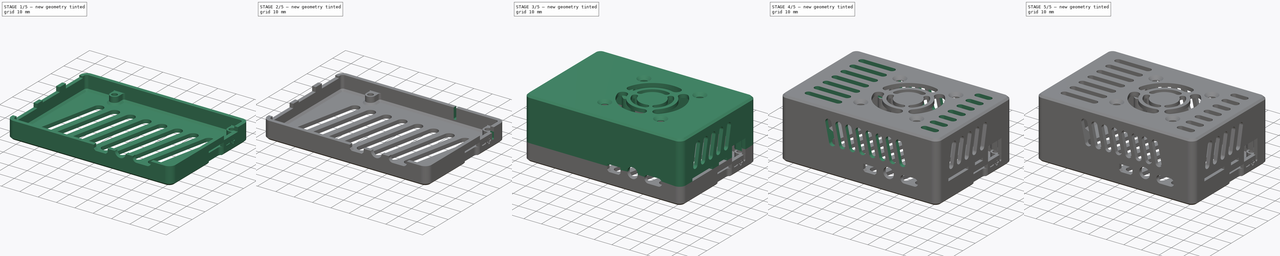
[diagram: build sequence overview — one tinted view per stage of 5, left to right]
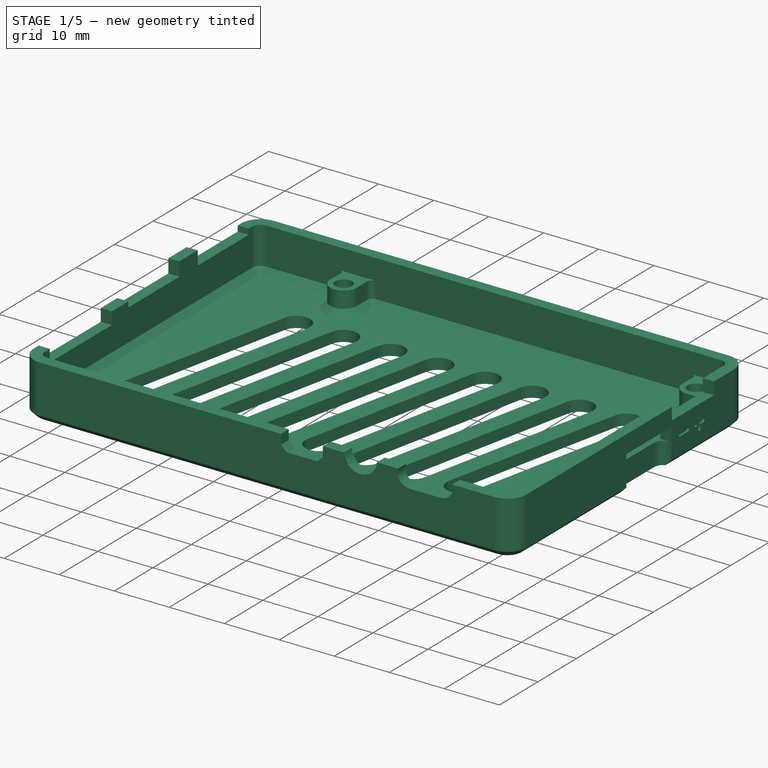
[diagram: stage 1 of 5 — iso view after this stage's code; geometry added in this stage tinted green]
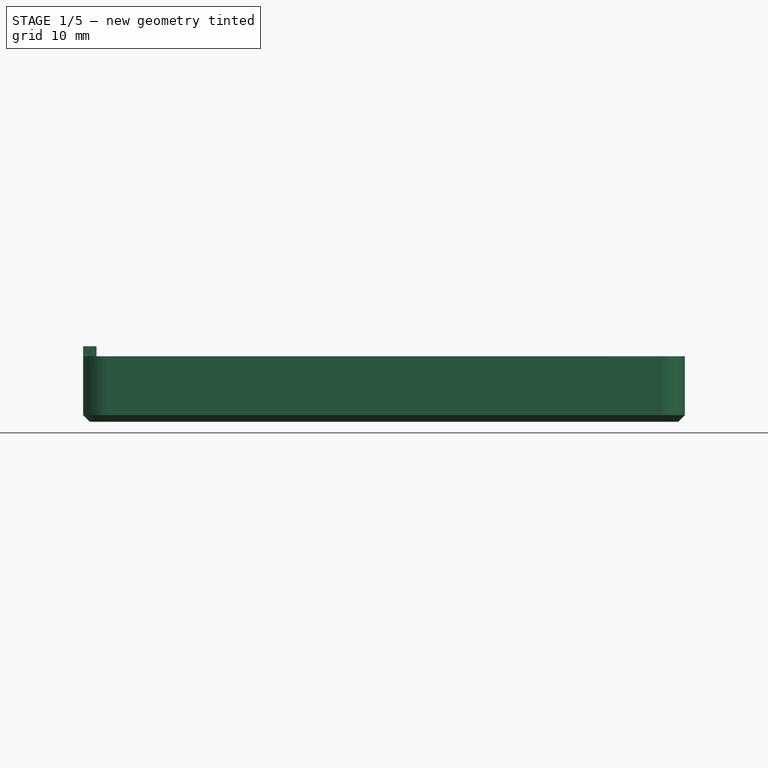
[diagram: stage 1 of 5 — front view after this stage's code; geometry added in this stage tinted green]
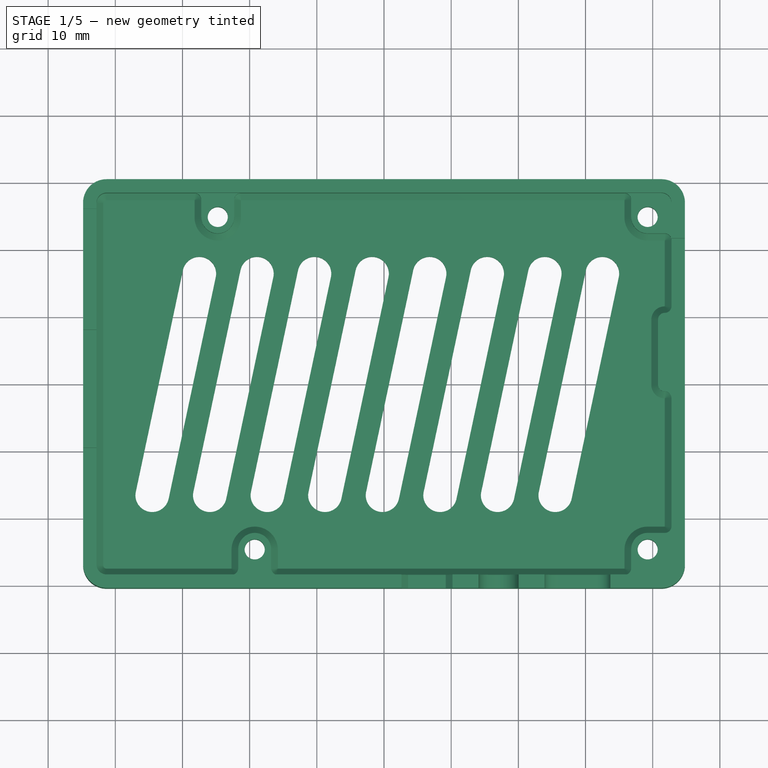
[diagram: stage 1 of 5 — top view after this stage's code; geometry added in this stage tinted green]
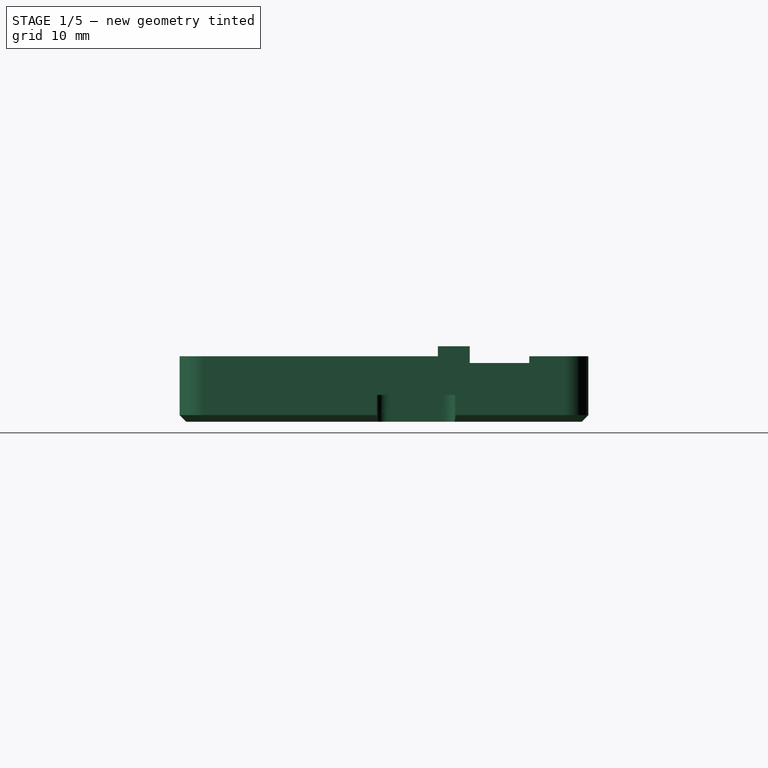
[diagram: stage 1 of 5 — right view after this stage's code; geometry added in this stage tinted green]
FCSTD DOCUMENT  (FreeCAD 0.21R33771 (Git))
Label: Base
License: All rights reserved
LicenseURL: http://en.wikipedia.org/wiki/All_rights_reserved
objects: Sketcher::SketchObject×18, PartDesign::Pocket×13, PartDesign::Pad×7, PartDesign::LinearPattern×4, Part::Feature×3, PartDesign::FeatureBase×2, PartDesign::Body×2, PartDesign::Chamfer×1
note: 71 computed .brp shape members not serialized (recipe doc carries the construction recipe); baked Part::Feature solids carry a one-line shape summary decoded from their .brp

FEATURE [PartDesign::Body] Body  label="Caste_top_snapfit"
  BaseFeature = -> Defeatured
  Group = -> [BaseFeature,Sketch,Pocket,LinearPattern,Sketch001,Pocket001,LinearPattern001,Sketch002,Pocket002,LinearPattern002,Sketch003,Pad,Sketch004,Pad001,Sketch005,Pad002,Sketch006,Pad003,Sketch007,Sketch008,Pad004,Pad005,Pocket003]
  Origin = -> Origin
  Tip = -> Pocket003
FEATURE [PartDesign::FeatureBase] BaseFeature001
  BaseFeature = -> Part__Feature
FEATURE [Sketcher::SketchObject] Sketch009
  FullyConstrained = true
  MapMode = 5
  Support = -> [XY_Plane001]
  sketch-geometry (5):
    g0: ArcOfCircle CenterX=-27.4928 CenterY=16.5 CenterZ=0 NormalX=0 NormalY=0 NormalZ=1 AngleXU=0 Radius=2.5 StartAngle=6.07375 EndAngle=9.21534
    g1: ArcOfCircle CenterX=-34.5072 CenterY=-16.5 CenterZ=0 NormalX=0 NormalY=0 NormalZ=1 AngleXU=0 Radius=2.5 StartAngle=2.93215 EndAngle=6.07375
    g2: LineSegment StartX=-29.9382 StartY=17.0198 StartZ=0 EndX=-36.9526 EndY=-15.9802 EndZ=0
    g3: LineSegment StartX=-32.0618 StartY=-17.0198 StartZ=0 EndX=-25.0474 EndY=15.9802 EndZ=0
    g4: GeomPoint X=-31 Y=0 Z=0
  constraints (11):
    c: Tangent(g0,g2) = -1.5708
    c: Tangent(g2,g1) = -1.5708
    c: Tangent(g1,g3) = -1.5708
    c: Tangent(g3,g0) = -1.5708
    c: Equal(g0,g1)
    c: PointOnObject(g4,g-1)
    c: Symmetric(g0,g1,g4)
    c: Diameter(g0) = 5
    c: Angle(g-1,g3) = 1.36136
    c: DistanceY(g3,g3) = 33
    c: DistanceX(g4,g-1) = 31
FEATURE [PartDesign::Pocket] Pocket004  label="Grate_btm"
  BaseFeature = -> BaseFeature001
  Direction = (0,0,-1)
  Length = 5
  Length2 = 5
  Midplane = true
  Profile = -> Sketch009
  ReferenceAxis = -> Sketch009 [N_Axis]
  Type = 1
FEATURE [PartDesign::LinearPattern] LinearPattern003
  BaseFeature = -> Pocket004
  Direction = -> X_Axis001
  Length = 60
  Occurrences = 8
  Originals = -> [Pocket004]
FEATURE [PartDesign::Pad] Pad006
  BaseFeature = -> LinearPattern003
  Direction = (0,0,1)
  Length = 1.5
  Length2 = 10
  Profile = -> LinearPattern003 [Face115]
  Type = 0
FEATURE [Sketcher::SketchObject] Sketch010
  AttachmentOffset = pos=(0,0,-24.875) rot=(0,0,1;0rad)
  FullyConstrained = true
  MapMode = 5
  Placement = pos=(0,24.875,5.5e-15) rot=(1,0,0;1.5708rad)
  Support = -> [XZ_Plane001]
  sketch-geometry (4):
    g0: LineSegment StartX=42.8 StartY=-9.55975 StartZ=0 EndX=42.8 EndY=-11 EndZ=0
    g1: LineSegment StartX=42.8 StartY=-11 StartZ=0 EndX=43.4 EndY=-10.5799 EndZ=0
    g2: LineSegment StartX=43.4 StartY=-10.5799 StartZ=0 EndX=43.4 EndY=-9.97988 EndZ=0
    g3: LineSegment StartX=43.4 StartY=-9.97988 StartZ=0 EndX=42.8 EndY=-9.55975 EndZ=0
  constraints (12):
    c: Coincident(g0,g1)
    c: Coincident(g1,g2)
    c: Vertical(g2)
    c: Coincident(g2,g3)
    c: Coincident(g3,g0)
    c: Parallel(g2,g0)
    c: Equal(g3,g1)
    c: DistanceY(g2,g2) = 0.6
    c: Angle(g0,g3) = 0.959931
    c: DistanceX(g0,g1) = 0.6
    c: DistanceX(g-1,g0) = 42.8
    c: DistanceY(g0,g-1) = 11
FEATURE [Sketcher::SketchObject] Sketch011
  AttachmentOffset = pos=(0,0,44.8) rot=(0,0,1;0rad)
  FullyConstrained = true
  MapMode = 5
  Placement = pos=(44.8,-9.9e-15,9.9e-15) rot=(0.57735,0.57735,0.57735;2.0944rad)
  Support = -> [YZ_Plane001]
  sketch-geometry (18):
    g0: GeomPoint X=17.88 Y=-12.5 Z=0
    g1: GeomPoint X=13.88 Y=-12.5 Z=0
    g2: ArcOfCircle CenterX=12.88 CenterY=-12.5 CenterZ=0 NormalX=0 NormalY=0 NormalZ=1 AngleXU=0 Radius=0.4 StartAngle=1.5708 EndAngle=4.71239
    g3: ArcOfCircle CenterX=14.88 CenterY=-12.5 CenterZ=0 NormalX=0 NormalY=0 NormalZ=1 AngleXU=0 Radius=0.4 StartAngle=4.71239 EndAngle=7.85398
    g4: LineSegment StartX=12.88 StartY=-12.9 StartZ=0 EndX=14.88 EndY=-12.9 EndZ=0
    g5: LineSegment StartX=14.88 StartY=-12.1 StartZ=0 EndX=12.88 EndY=-12.1 EndZ=0
    g6: ArcOfCircle CenterX=16.88 CenterY=-12.5 CenterZ=0 NormalX=0 NormalY=0 NormalZ=1 AngleXU=0 Radius=0.4 StartAngle=1.5708 EndAngle=4.71239
    g7: ArcOfCircle CenterX=18.88 CenterY=-12.5 CenterZ=0 NormalX=0 NormalY=0 NormalZ=1 AngleXU=0 Radius=0.4 StartAngle=4.71239 EndAngle=7.854
    g8: LineSegment StartX=16.88 StartY=-12.9 StartZ=0 EndX=17.48 EndY=-12.9 EndZ=0
    g9: LineSegment StartX=18.88 StartY=-12.1 StartZ=0 EndX=18.28 EndY=-12.1 EndZ=0
    g10: ArcOfCircle CenterX=17.88 CenterY=-11.5 CenterZ=0 NormalX=0 NormalY=0 NormalZ=1 AngleXU=0 Radius=0.4 StartAngle=0 EndAngle=3.14159
    g11: ArcOfCircle CenterX=17.88 CenterY=-13.5 CenterZ=0 NormalX=0 NormalY=0 NormalZ=1 AngleXU=0 Radius=0.4 StartAngle=3.14159 EndAngle=6.28319
    g12: LineSegment StartX=17.48 StartY=-11.5 StartZ=0 EndX=17.48 EndY=-12.1 EndZ=0
    g13: LineSegment StartX=18.28 StartY=-13.5 StartZ=0 EndX=18.28 EndY=-12.9 EndZ=0
    g14: LineSegment StartX=17.48 StartY=-12.1 StartZ=0 EndX=16.88 EndY=-12.1 EndZ=0
    g15: LineSegment StartX=18.28 StartY=-12.1 StartZ=0 EndX=18.28 EndY=-11.5 EndZ=0
    g16: LineSegment StartX=18.28 StartY=-12.9 StartZ=0 EndX=18.88 EndY=-12.9 EndZ=0
    g17: LineSegment StartX=17.48 StartY=-12.9 StartZ=0 EndX=17.48 EndY=-13.5 EndZ=0
  constraints (42):
    c: Horizontal(g1,g0)
    c: DistanceX(g1,g0) = 4
    c: Tangent(g2,g4) = -1.5708
    c: Tangent(g4,g3) = -1.5708
    c: Tangent(g3,g5) = -1.5708
    c: Tangent(g5,g2) = -1.5708
    c: Equal(g2,g3)
    c: Horizontal(g4)
    c: Symmetric(g2,g3,g1)
    c: Diameter(g3) = 0.8
    c: Equal(g6,g7)
    c: Symmetric(g6,g7,g0)
    c: Equal(g10,g7)
    c: Equal(g7,g3)
    c: Equal(g14,g12)
    c: Coincident(g9,g7)
    c: Coincident(g9,g15)
    c: Symmetric(g11,g10,g0)
    c: Symmetric(g9,g8,g0)
    c: Symmetric(g12,g13,g0)
    c: Coincident(g16,g13)
    c: Coincident(g12,g14)
    c: Coincident(g17,g8)
    c: Horizontal(g12,g9)
    c: Vertical(g8,g12)
    c: Vertical(g12)
    c: Parallel(g15,g12)
    c: Equal(g11,g7)
    c: Tangent(g15,g10) = -1.5708
    c: Tangent(g12,g10) = -1.5708
    c: Horizontal(g8)
    c: Tangent(g16,g7) = -1.5708
    c: Horizontal(g14)
    c: DistanceX(g6,g7) = 2
    c: DistanceX(g2,g3) = 2
    c: Tangent(g6,g14) = -1.5708
    c: Tangent(g13,g11) = -1.5708
    c: Tangent(g17,g11) = -1.5708
    c: DistanceY(g0,g-1) = 12.5
    c: Horizontal(g9)
    c: Tangent(g8,g6) = -1.5708
    c: DistanceX(g-1,g1) = 13.88
FEATURE [PartDesign::Pocket] Pocket005  label="Power_marking"
  BaseFeature = -> Pad006
  Direction = (-1,2e-16,-3e-16)
  Length = 0.4
  Length2 = 5
  Profile = -> Sketch011
  ReferenceAxis = -> Sketch011 [N_Axis]
  Type = 0
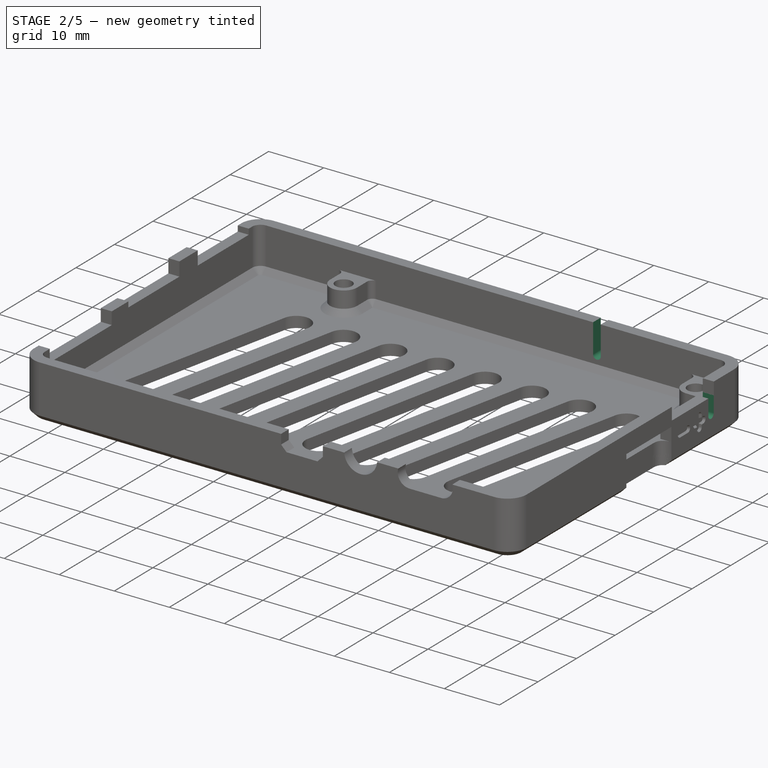
[diagram: stage 2 of 5 — iso view after this stage's code; geometry added in this stage tinted green]
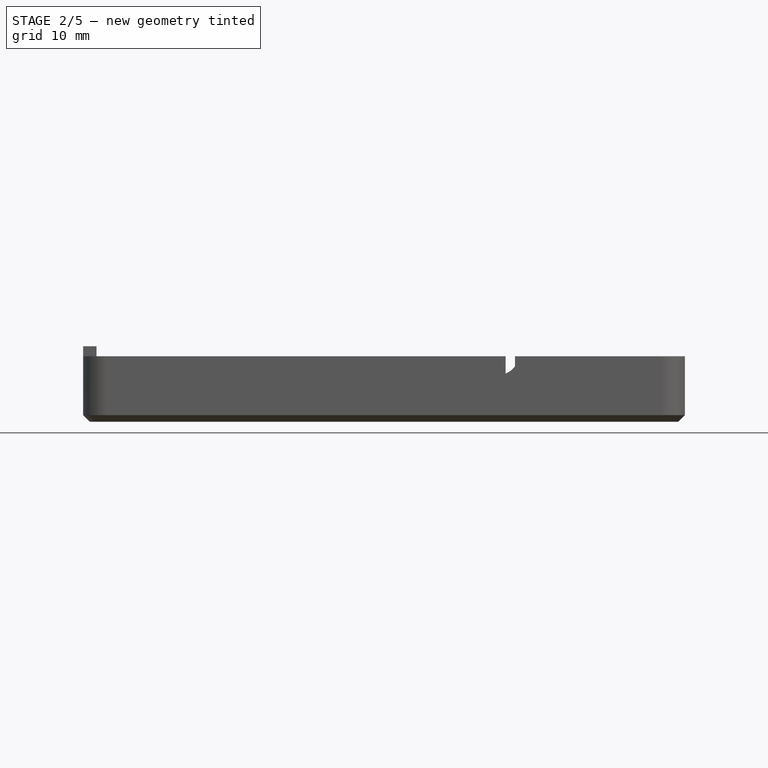
[diagram: stage 2 of 5 — front view after this stage's code; geometry added in this stage tinted green]
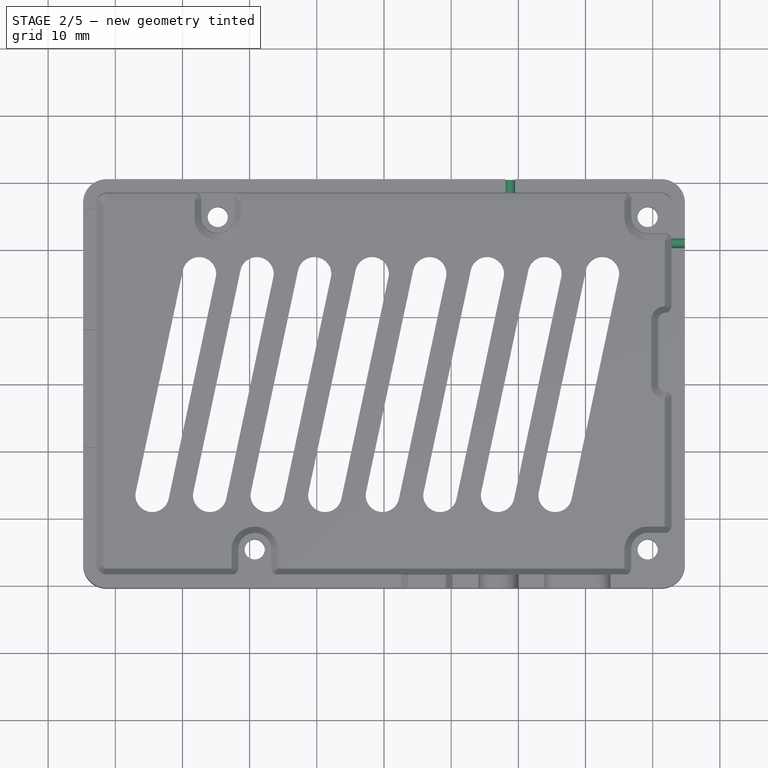
[diagram: stage 2 of 5 — top view after this stage's code; geometry added in this stage tinted green]
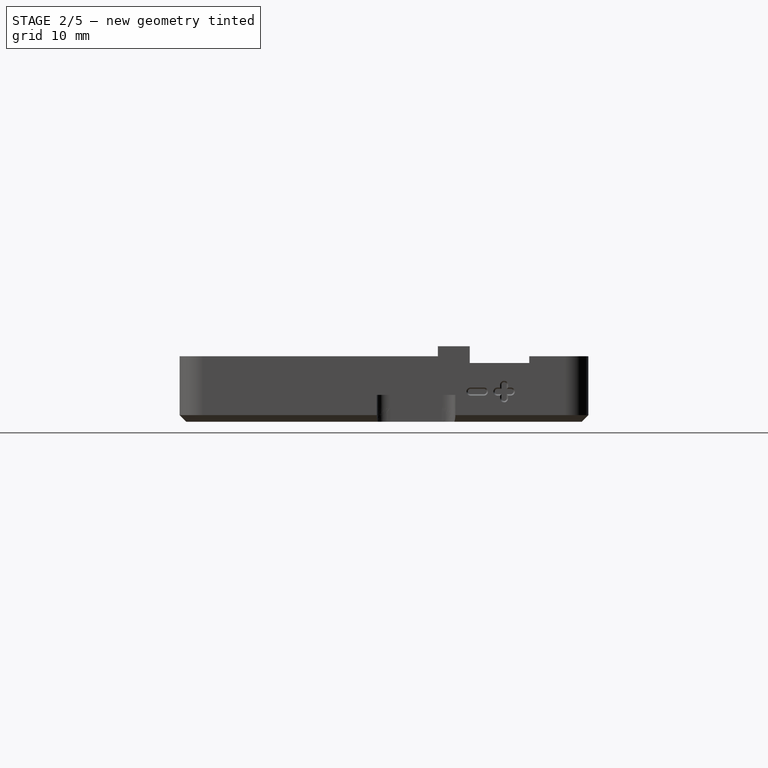
[diagram: stage 2 of 5 — right view after this stage's code; geometry added in this stage tinted green]
FEATURE [Sketcher::SketchObject] Sketch012
  AttachmentOffset = pos=(0,0,45) rot=(0,0,1;0rad)
  FullyConstrained = true
  MapMode = 5
  Placement = pos=(45,-1e-14,1e-14) rot=(0.57735,0.57735,0.57735;2.0944rad)
  Support = -> [YZ_Plane001]
  sketch-geometry (4):
    g0: ArcOfCircle CenterX=20.9 CenterY=-8.6 CenterZ=0 NormalX=0 NormalY=0 NormalZ=1 AngleXU=0 Radius=0.7 StartAngle=0 EndAngle=3.14159
    g1: ArcOfCircle CenterX=20.9 CenterY=-12.4 CenterZ=0 NormalX=0 NormalY=0 NormalZ=1 AngleXU=0 Radius=0.7 StartAngle=3.14159 EndAngle=6.28319
    g2: LineSegment StartX=20.2 StartY=-8.6 StartZ=0 EndX=20.2 EndY=-12.4 EndZ=0
    g3: LineSegment StartX=21.6 StartY=-12.4 StartZ=0 EndX=21.6 EndY=-8.6 EndZ=0
  constraints (10):
    c: Tangent(g0,g2) = -1.5708
    c: Tangent(g2,g1) = -1.5708
    c: Tangent(g1,g3) = -1.5708
    c: Tangent(g3,g0) = -1.5708
    c: Equal(g0,g1)
    c: Diameter(g0) = 1.4
    c: Angle(g-2,g3) = 0
    c: DistanceX(g-1,g0) = 20.9
    c: DistanceY(g0,g-1) = 8.6
    c: DistanceY(g1,g0) = 3.8
FEATURE [PartDesign::Chamfer] Chamfer
  Angle = 45
  Base = -> Pocket005 [Edge451,Edge462,Edge459,Edge456,Edge453]
  BaseFeature = -> Pocket005
  ChamferType = 1
  FlipDirection = false
  Size = 0.2
  Size2 = 0.399
  SupportTransform = false
  UseAllEdges = false
FEATURE [PartDesign::Pocket] Pocket006  label="Wire_notch_back"
  BaseFeature = -> Chamfer
  Direction = (-1,2e-16,-3e-16)
  Length = 5
  Length2 = 5
  Profile = -> Sketch012
  ReferenceAxis = -> Sketch012 [N_Axis]
  Type = 0
FEATURE [Sketcher::SketchObject] Sketch013
  AttachmentOffset = pos=(0,0,-31) rot=(0,0,1;0rad)
  FullyConstrained = true
  MapMode = 5
  Placement = pos=(0,31,6.9e-15) rot=(1,0,0;1.5708rad)
  Support = -> [XZ_Plane001]
  expr: Constraints[6] = (42.8 - 24) * -1
  sketch-geometry (4):
    g0: ArcOfCircle CenterX=18.8 CenterY=-5.5 CenterZ=0 NormalX=0 NormalY=0 NormalZ=1 AngleXU=0 Radius=0.7 StartAngle=1.8e-15 EndAngle=3.14159
    g1: ArcOfCircle CenterX=18.8 CenterY=-12.5 CenterZ=0 NormalX=0 NormalY=0 NormalZ=1 AngleXU=0 Radius=0.7 StartAngle=3.14159 EndAngle=6.28319
    g2: LineSegment StartX=18.1 StartY=-5.5 StartZ=0 EndX=18.1 EndY=-12.5 EndZ=0
    g3: LineSegment StartX=19.5 StartY=-12.5 StartZ=0 EndX=19.5 EndY=-5.5 EndZ=0
  constraints (10):
    c: Tangent(g0,g2) = -1.5708
    c: Tangent(g2,g1) = -1.5708
    c: Tangent(g1,g3) = -1.5708
    c: Tangent(g3,g0) = -1.5708
    c: Equal(g0,g1)
    c: Vertical(g2)
    c: DistanceX(g0,g-1) = -18.8
    c: Diameter(g0) = 1.4
    c: DistanceY(g3,g3) = 7
    c: DistanceY(g0,g-1) = 5.5
FEATURE [PartDesign::Pocket] Pocket007  label="Wire_notch_side"
  BaseFeature = -> Pocket006
  Direction = (0,1,2e-16)
  Length = 5
  Length2 = 5
  Profile = -> Sketch013
  ReferenceAxis = -> Sketch013 [N_Axis]
  Reversed = true
  Type = 0
FEATURE [Sketcher::SketchObject] Sketch014
  AttachmentOffset = pos=(0,0,24.625) rot=(0,0,1;0rad)
  FullyConstrained = true
  MapMode = 5
  Placement = pos=(0,-24.625,-5.5e-15) rot=(1,0,0;1.5708rad)
  Support = -> [XZ_Plane001]
  sketch-geometry (4):
    g0: LineSegment StartX=42.8 StartY=-9.55975 StartZ=0 EndX=42.8 EndY=-11 EndZ=0
    g1: LineSegment StartX=42.8 StartY=-11 StartZ=0 EndX=43.4 EndY=-10.5799 EndZ=0
    g2: LineSegment StartX=43.4 StartY=-10.5799 StartZ=0 EndX=43.4 EndY=-9.97988 EndZ=0
    g3: LineSegment StartX=43.4 StartY=-9.97988 StartZ=0 EndX=42.8 EndY=-9.55975 EndZ=0
  constraints (12):
    c: Coincident(g0,g1)
    c: Coincident(g1,g2)
    c: Vertical(g2)
    c: Coincident(g2,g3)
    c: Coincident(g3,g0)
    c: Parallel(g2,g0)
    c: Equal(g3,g1)
    c: DistanceY(g2,g2) = 0.6
    c: Angle(g0,g3) = 0.959931
    c: DistanceX(g0,g1) = 0.6
    c: DistanceX(g-1,g0) = 42.8
    c: DistanceY(g0,g-1) = 11
FEATURE [PartDesign::Pocket] Pocket008  label="Locator_pocket_frontL"
  BaseFeature = -> Pocket007
  Direction = (0,1,2e-16)
  Length = 3
  Length2 = 5
  Midplane = true
  Profile = -> Sketch010
  ReferenceAxis = -> Sketch010 [N_Axis]
  Type = 0
FEATURE [PartDesign::Pocket] Pocket009  label="Locator_pocket_frontR"
  BaseFeature = -> Pocket008
  Direction = (0,1,2e-16)
  Length = 3
  Length2 = 5
  Midplane = true
  Profile = -> Sketch014
  ReferenceAxis = -> Sketch014 [N_Axis]
  Type = 0
FEATURE [Sketcher::SketchObject] Sketch015
  AttachmentOffset = pos=(-19.25,0,28.425) rot=(0,1,0;-1.5708rad)
  FullyConstrained = true
  MapMode = 5
  Placement = pos=(-19.25,-28.425,-6.3e-15) rot=(-0.57735,0.57735,0.57735;4.18879rad)
  Support = -> [XZ_Plane001]
  sketch-geometry (4):
    g0: LineSegment StartX=0 StartY=-9.55975 StartZ=0 EndX=0 EndY=-11 EndZ=0
    g1: LineSegment StartX=0 StartY=-11 StartZ=0 EndX=0.6 EndY=-10.5799 EndZ=0
    g2: LineSegment StartX=0.6 StartY=-10.5799 StartZ=0 EndX=0.6 EndY=-9.97988 EndZ=0
    g3: LineSegment StartX=0.6 StartY=-9.97988 StartZ=0 EndX=0 EndY=-9.55975 EndZ=0
  constraints (12):
    c: Coincident(g0,g1)
    c: Coincident(g1,g2)
    c: Vertical(g2)
    c: Coincident(g2,g3)
    c: Coincident(g3,g0)
    c: Parallel(g2,g0)
    c: Equal(g3,g1)
    c: DistanceY(g2,g2) = 0.6
    c: Angle(g0,g3) = 0.959931
    c: DistanceX(g0,g1) = 0.6
    c: DistanceX(g-1,g0) = 0
    c: DistanceY(g0,g-1) = 11
FEATURE [Sketcher::SketchObject] Sketch016
  AttachmentOffset = pos=(-24.75,0,-28.425) rot=(0,1,0;1.5708rad)
  FullyConstrained = true
  MapMode = 5
  Placement = pos=(-24.75,28.425,6.3e-15) rot=(0.57735,0.57735,0.57735;2.0944rad)
  Support = -> [XZ_Plane001]
  sketch-geometry (4):
    g0: LineSegment StartX=0 StartY=-9.55975 StartZ=0 EndX=0 EndY=-11 EndZ=0
    g1: LineSegment StartX=0 StartY=-11 StartZ=0 EndX=0.6 EndY=-10.5799 EndZ=0
    g2: LineSegment StartX=0.6 StartY=-10.5799 StartZ=0 EndX=0.6 EndY=-9.97988 EndZ=0
    g3: LineSegment StartX=0.6 StartY=-9.97988 StartZ=0 EndX=0 EndY=-9.55975 EndZ=0
  constraints (12):
    c: Coincident(g0,g1)
    c: Coincident(g1,g2)
    c: Vertical(g2)
    c: Coincident(g2,g3)
    c: Coincident(g3,g0)
    c: Parallel(g2,g0)
    c: Equal(g3,g1)
    c: DistanceY(g2,g2) = 0.6
    c: Angle(g0,g3) = 0.959931
    c: DistanceX(g0,g1) = 0.6
    c: DistanceX(g-1,g0) = 0
    c: DistanceY(g0,g-1) = 11
FEATURE [PartDesign::Pocket] Pocket010  label="Locator_pocket_sideL"
  BaseFeature = -> Pocket009
  Direction = (1,-2e-16,0)
  Length = 3
  Length2 = 5
  Midplane = true
  Profile = -> Sketch015
  ReferenceAxis = -> Sketch015 [N_Axis]
  Type = 0
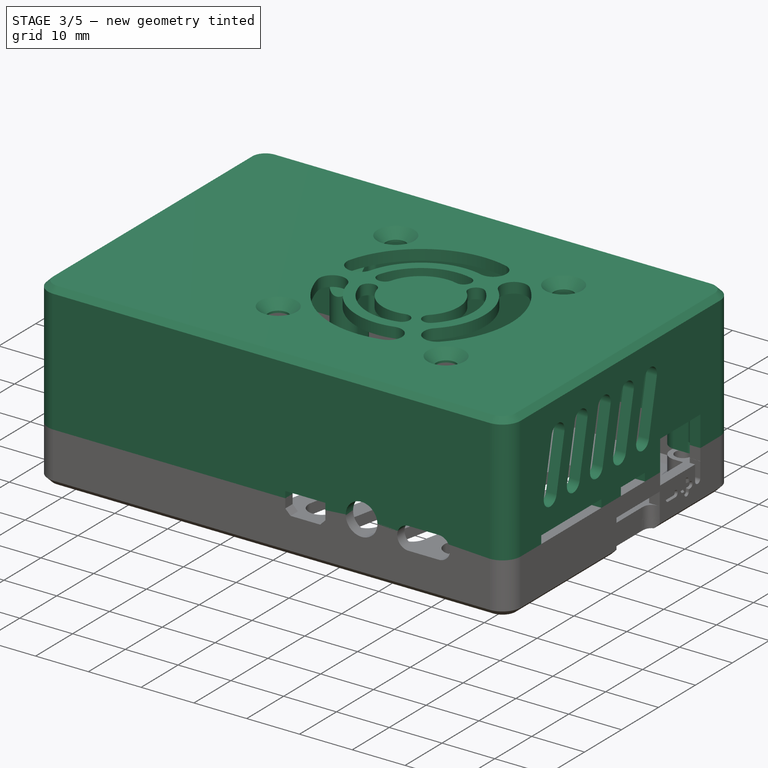
[diagram: stage 3 of 5 — iso view after this stage's code; geometry added in this stage tinted green]
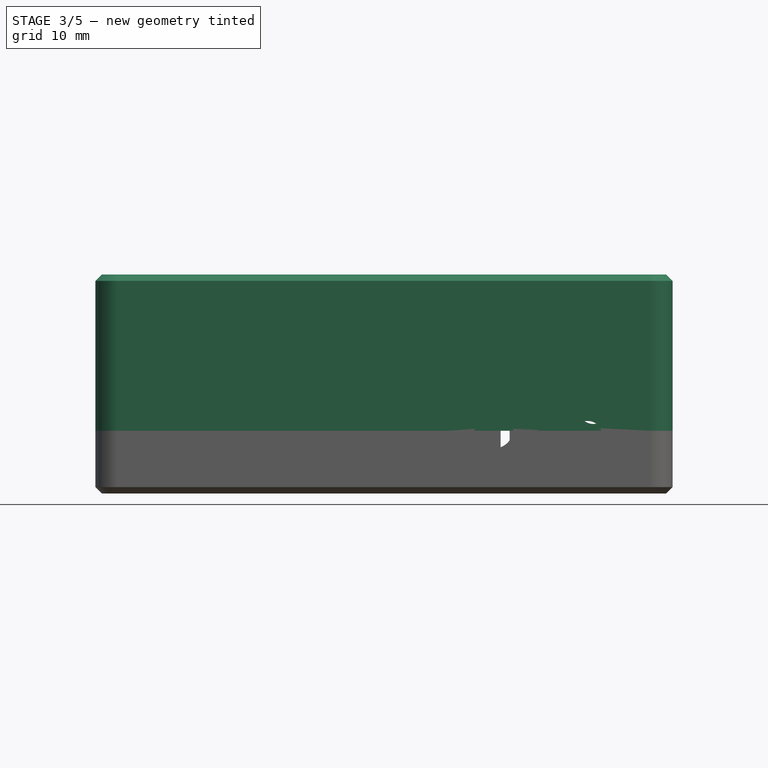
[diagram: stage 3 of 5 — front view after this stage's code; geometry added in this stage tinted green]
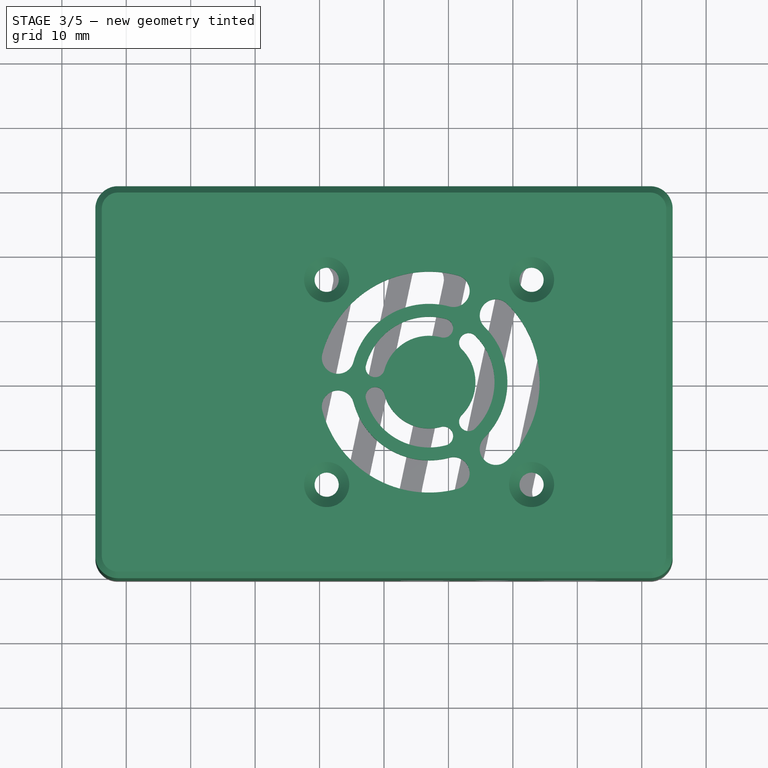
[diagram: stage 3 of 5 — top view after this stage's code; geometry added in this stage tinted green]
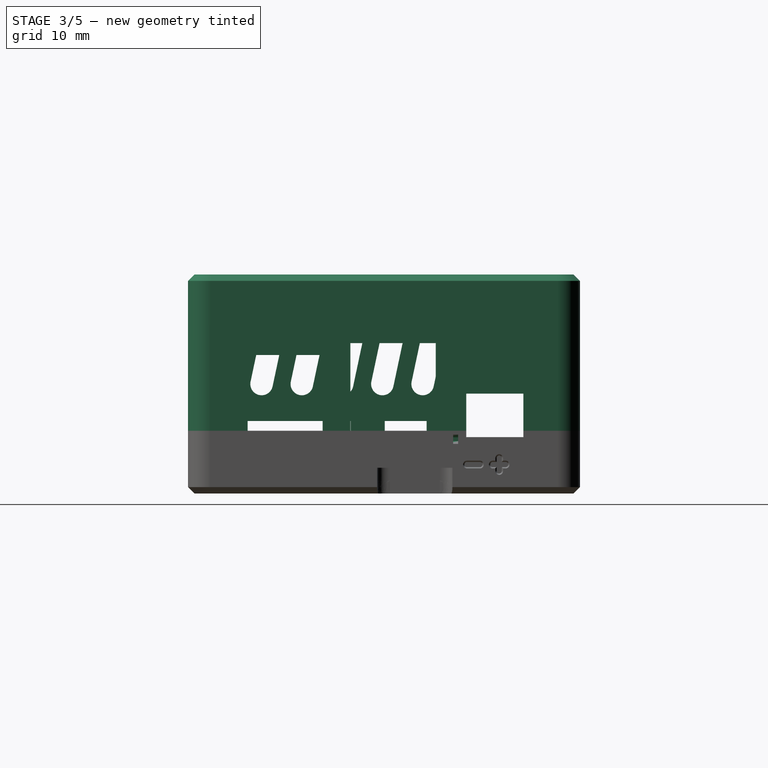
[diagram: stage 3 of 5 — right view after this stage's code; geometry added in this stage tinted green]
FEATURE [Part::Feature] Part__Feature  label="Case_btm"
  shape: bbox 89.61 x 60.86 x 9.757 mm, 135 faces (baked)
FEATURE [Part::Feature] Part__Feature001  label="Case_top"
  shape: bbox 89.6 x 60.85 x 26.2 mm, 186 faces (baked)
FEATURE [Part::Feature] Defeatured
  shape: bbox 89.6 x 60.85 x 26.2 mm, 154 faces (baked)
FEATURE [PartDesign::FeatureBase] BaseFeature
  BaseFeature = -> Defeatured
FEATURE [Sketcher::SketchObject] Sketch
  FullyConstrained = true
  MapMode = 5
  Placement = pos=(0,0,0) rot=(0.57735,0.57735,0.57735;2.0944rad)
  Support = -> [YZ_Plane]
  sketch-geometry (4):
    g0: ArcOfCircle CenterX=-16.8744 CenterY=10 CenterZ=0 NormalX=0 NormalY=0 NormalZ=1 AngleXU=0 Radius=1.75 StartAngle=6.07375 EndAngle=9.21534
    g1: ArcOfCircle CenterX=-19 CenterY=0 CenterZ=0 NormalX=0 NormalY=0 NormalZ=1 AngleXU=0 Radius=1.75 StartAngle=2.93215 EndAngle=6.07375
    g2: LineSegment StartX=-18.5862 StartY=10.3638 StartZ=0 EndX=-20.7118 EndY=0.363845 EndZ=0
    g3: LineSegment StartX=-17.2882 StartY=-0.363845 StartZ=0 EndX=-15.1627 EndY=9.63615 EndZ=0
  constraints (10):
    c: Tangent(g0,g2) = -1.5708
    c: Tangent(g2,g1) = -1.5708
    c: Tangent(g1,g3) = -1.5708
    c: Tangent(g3,g0) = -1.5708
    c: Equal(g0,g1)
    c: PointOnObject(g1,g-1)
    c: Diameter(g0) = 3.5
    c: Angle(g-1,g3) = 1.36136
    c: DistanceY(g1,g0) = 10
    c: DistanceX(g1,g-1) = 19
FEATURE [PartDesign::Pocket] Pocket  label="Grate_back"
  BaseFeature = -> BaseFeature
  Direction = (-1,2e-16,-3e-16)
  Length = 50
  Length2 = 5
  Profile = -> Sketch
  ReferenceAxis = -> Sketch [N_Axis]
  Reversed = true
  Type = 0
FEATURE [PartDesign::LinearPattern] LinearPattern
  BaseFeature = -> Pocket
  Direction = -> Sketch [H_Axis]
  Length = 25
  Occurrences = 5
  Originals = -> [Pocket]
FEATURE [PartDesign::Pocket] Pocket011  label="Locator_pocket_sideR"
  BaseFeature = -> Pocket010
  Direction = (-1,2e-16,0)
  Length = 3
  Length2 = 5
  Midplane = true
  Profile = -> Sketch016
  ReferenceAxis = -> Sketch016 [N_Axis]
  Type = 0
FEATURE [Sketcher::SketchObject] Sketch017
  AttachmentOffset = pos=(0,-18.85,-10.5) rot=(0,0,1;3.14159rad)
  FullyConstrained = true
  MapMode = 5
  Placement = pos=(0,10.5,-18.85) rot=(0,-0.707107,0.707107;3.14159rad)
  Support = -> [XZ_Plane001]
  sketch-geometry (4):
    g0: LineSegment StartX=42.8 StartY=-9.55975 StartZ=0 EndX=42.8 EndY=-11 EndZ=0
    g1: LineSegment StartX=42.8 StartY=-11 StartZ=0 EndX=43.4 EndY=-10.5799 EndZ=0
    g2: LineSegment StartX=43.4 StartY=-10.5799 StartZ=0 EndX=43.4 EndY=-9.97988 EndZ=0
    g3: LineSegment StartX=43.4 StartY=-9.97988 StartZ=0 EndX=42.8 EndY=-9.55975 EndZ=0
  constraints (12):
    c: Coincident(g0,g1)
    c: Coincident(g1,g2)
    c: Vertical(g2)
    c: Coincident(g2,g3)
    c: Coincident(g3,g0)
    c: Parallel(g2,g0)
    c: Equal(g3,g1)
    c: DistanceY(g2,g2) = 0.6
    c: Angle(g0,g3) = 0.959931
    c: DistanceX(g0,g1) = 0.6
    c: DistanceX(g-1,g0) = 42.8
    c: DistanceY(g0,g-1) = 11
FEATURE [PartDesign::Pocket] Pocket012  label="Locator_pocket_Vane"
  BaseFeature = -> Pocket011
  Direction = (0,1,2e-16)
  Length = 2
  Length2 = 5
  Midplane = true
  Profile = -> Sketch017
  ReferenceAxis = -> Sketch017 [N_Axis]
  Type = 0
FEATURE [PartDesign::Body] Body001  label="Case_btm_snapfit"
  BaseFeature = -> Part__Feature
  Group = -> [BaseFeature001,Sketch009,Pocket004,LinearPattern003,Pad006,Sketch011,Pocket005,Chamfer,Sketch012,Pocket006,Sketch013,Pocket007,Sketch010,Sketch014,Pocket008,Pocket009,Sketch015,Pocket010,Sketch016,Pocket011,Sketch017,Pocket012]
  Origin = -> Origin001
  Tip = -> Pocket012
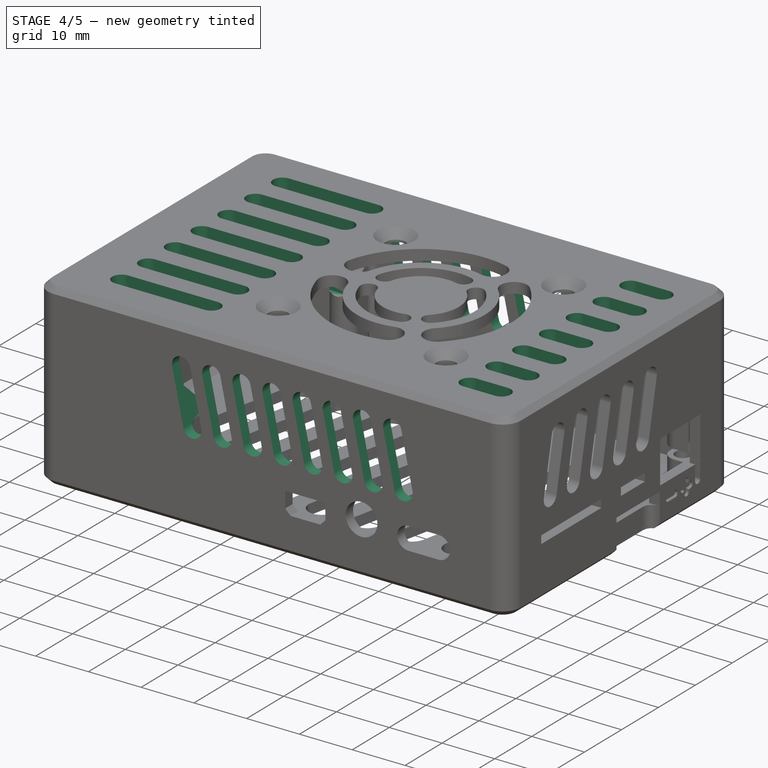
[diagram: stage 4 of 5 — iso view after this stage's code; geometry added in this stage tinted green]
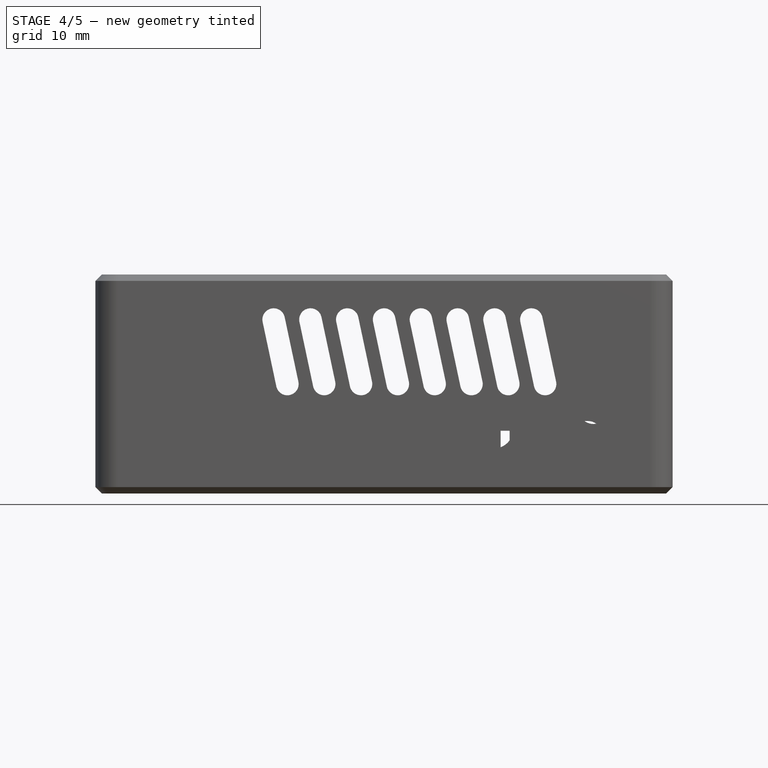
[diagram: stage 4 of 5 — front view after this stage's code; geometry added in this stage tinted green]
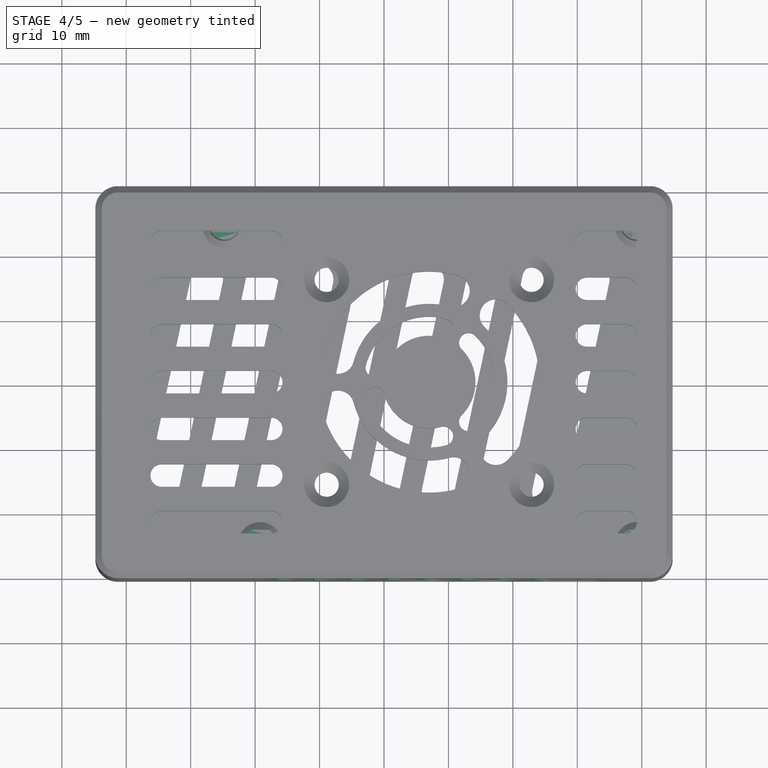
[diagram: stage 4 of 5 — top view after this stage's code; geometry added in this stage tinted green]
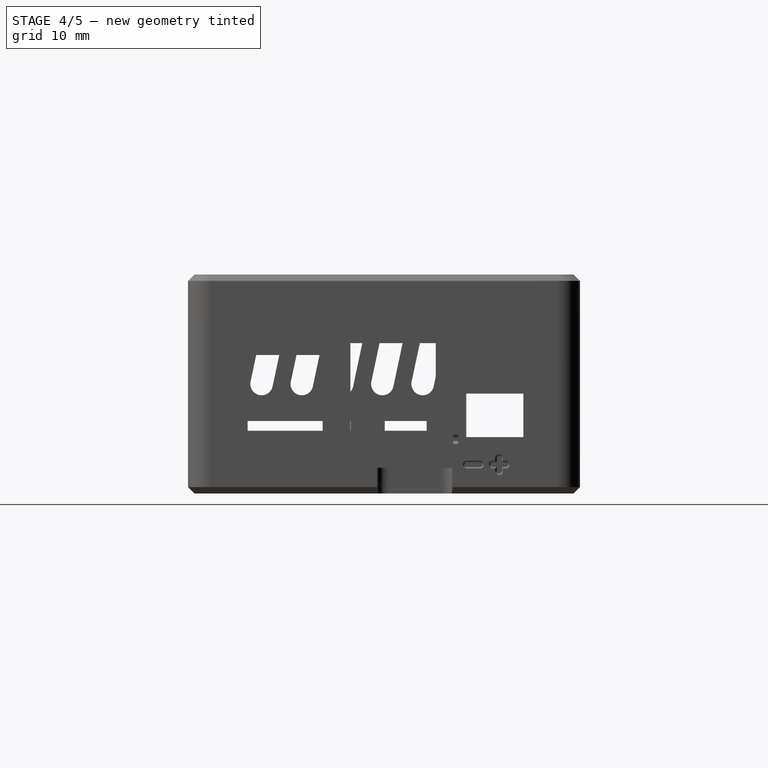
[diagram: stage 4 of 5 — right view after this stage's code; geometry added in this stage tinted green]
FEATURE [Sketcher::SketchObject] Sketch001
  FullyConstrained = true
  MapMode = 5
  Placement = pos=(0,0,0) rot=(1,0,0;1.5708rad)
  Support = -> [XZ_Plane]
  sketch-geometry (4):
    g0: ArcOfCircle CenterX=-15 CenterY=0 CenterZ=0 NormalX=0 NormalY=0 NormalZ=1 AngleXU=0 Radius=1.75 StartAngle=3.35103 EndAngle=6.49262
    g1: ArcOfCircle CenterX=-17.1256 CenterY=10 CenterZ=0 NormalX=0 NormalY=0 NormalZ=1 AngleXU=0 Radius=1.75 StartAngle=0.20944 EndAngle=3.35103
    g2: LineSegment StartX=-13.2882 StartY=0.363845 StartZ=0 EndX=-15.4138 EndY=10.3638 EndZ=0
    g3: LineSegment StartX=-18.8373 StartY=9.63615 StartZ=0 EndX=-16.7118 EndY=-0.363845 EndZ=0
  constraints (10):
    c: Tangent(g0,g2) = -1.5708
    c: Tangent(g2,g1) = -1.5708
    c: Tangent(g1,g3) = -1.5708
    c: Tangent(g3,g0) = -1.5708
    c: Equal(g0,g1)
    c: PointOnObject(g0,g-1)
    c: Diameter(g1) = 3.5
    c: Angle(g-1,g3) = 1.78024
    c: DistanceY(g0,g1) = 10
    c: DistanceX(g0,g-1) = 15
FEATURE [PartDesign::Pocket] Pocket001  label="Grate_sides"
  BaseFeature = -> LinearPattern
  Direction = (0,1,-2e-16)
  Length = 5
  Length2 = 5
  Midplane = true
  Profile = -> Sketch001
  ReferenceAxis = -> Sketch001 [N_Axis]
  Type = 1
FEATURE [PartDesign::LinearPattern] LinearPattern001
  BaseFeature = -> Pocket001
  Direction = -> Sketch001 [H_Axis]
  Length = 40
  Occurrences = 8
  Originals = -> [Pocket001]
FEATURE [Sketcher::SketchObject] Sketch002
  FullyConstrained = true
  MapMode = 5
  Support = -> [XY_Plane]
  sketch-geometry (8):
    g0: ArcOfCircle CenterX=-34.5 CenterY=21.75 CenterZ=0 NormalX=0 NormalY=0 NormalZ=1 AngleXU=0 Radius=1.75 StartAngle=1.5708 EndAngle=4.71239
    g1: ArcOfCircle CenterX=-17.5 CenterY=21.75 CenterZ=0 NormalX=0 NormalY=0 NormalZ=1 AngleXU=0 Radius=1.75 StartAngle=4.71239 EndAngle=7.85398
    g2: LineSegment StartX=-34.5 StartY=20 StartZ=0 EndX=-17.5 EndY=20 EndZ=0
    g3: LineSegment StartX=-17.5 StartY=23.5 StartZ=0 EndX=-34.5 EndY=23.5 EndZ=0
    g4: ArcOfCircle CenterX=37.5 CenterY=21.75 CenterZ=0 NormalX=0 NormalY=0 NormalZ=1 AngleXU=0 Radius=1.75 StartAngle=4.71239 EndAngle=7.85398
    g5: ArcOfCircle CenterX=31.5 CenterY=21.75 CenterZ=0 NormalX=0 NormalY=0 NormalZ=1 AngleXU=0 Radius=1.75 StartAngle=1.5708 EndAngle=4.71239
    g6: LineSegment StartX=37.5 StartY=23.5 StartZ=0 EndX=31.5 EndY=23.5 EndZ=0
    g7: LineSegment StartX=31.5 StartY=20 StartZ=0 EndX=37.5 EndY=20 EndZ=0
  constraints (20):
    c: Tangent(g0,g2) = -1.5708
    c: Tangent(g2,g1) = -1.5708
    c: Tangent(g1,g3) = -1.5708
    c: Tangent(g3,g0) = -1.5708
    c: Equal(g0,g1)
    c: Horizontal(g2)
    c: Diameter(g1) = 3.5
    c: DistanceY(g-1,g1) = 23.5
    c: DistanceX(g1,g-1) = 17.5
    c: DistanceX(g3,g3) = 17
    c: Tangent(g4,g6) = -1.5708
    c: Tangent(g6,g5) = -1.5708
    c: Tangent(g5,g7) = -1.5708
    c: Tangent(g7,g4) = -1.5708
    c: Equal(g4,g5)
    c: Horizontal(g6)
    c: Equal(g1,g4)
    c: Horizontal(g5,g1)
    c: DistanceX(g1,g5) = 49
    c: DistanceX(g6,g6) = 6
FEATURE [PartDesign::Pocket] Pocket002  label="Grate_top"
  BaseFeature = -> LinearPattern001
  Direction = (0,0,-1)
  Length = 5
  Length2 = 5
  Profile = -> Sketch002
  ReferenceAxis = -> Sketch002 [N_Axis]
  Reversed = true
  Type = 1
FEATURE [PartDesign::LinearPattern] LinearPattern002
  BaseFeature = -> Pocket002
  Direction = -> Y_Axis
  Length = 43.5
  Occurrences = 7
  Originals = -> [Pocket002]
  Reversed = true
FEATURE [Sketcher::SketchObject] Sketch003
  AttachmentOffset = pos=(0,0,24.625) rot=(0,0,1;0rad)
  FullyConstrained = true
  MapMode = 5
  Placement = pos=(0,-24.625,-5.5e-15) rot=(1,0,0;1.5708rad)
  Support = -> [XZ_Plane]
  sketch-geometry (4):
    g0: LineSegment StartX=42.8 StartY=-9.2 StartZ=0 EndX=43.3 EndY=-8.8499 EndZ=0
    g1: LineSegment StartX=43.3 StartY=-8.8499 StartZ=0 EndX=43.3 EndY=-8.2499 EndZ=0
    g2: LineSegment StartX=43.3 StartY=-8.2499 StartZ=0 EndX=42.8 EndY=-7.89979 EndZ=0
    g3: LineSegment StartX=42.8 StartY=-7.89979 StartZ=0 EndX=42.8 EndY=-9.2 EndZ=0
  constraints (12):
    c: Coincident(g0,g1)
    c: Vertical(g1)
    c: Coincident(g1,g2)
    c: Coincident(g2,g3)
    c: Coincident(g3,g0)
    c: Vertical(g3)
    c: Equal(g2,g0)
    c: Angle(g3,g2) = 0.959931
    c: DistanceY(g1,g1) = 0.6
    c: DistanceX(g0,g0) = 0.5
    c: DistanceX(g-1,g0) = 42.8
    c: DistanceY(g0,g-1) = 9.2
FEATURE [PartDesign::Pad] Pad  label="Locator_frontR"
  BaseFeature = -> LinearPattern002
  Direction = (0,-1,2e-16)
  Length = 2.5
  Length2 = 10
  Midplane = true
  Profile = -> Sketch003
  ReferenceAxis = -> Sketch003 [N_Axis]
  Type = 0
FEATURE [Sketcher::SketchObject] Sketch004
  AttachmentOffset = pos=(0,0,-24.875) rot=(0,0,1;0rad)
  FullyConstrained = true
  MapMode = 5
  Placement = pos=(0,24.875,5.5e-15) rot=(1,0,0;1.5708rad)
  Support = -> [XZ_Plane]
  sketch-geometry (4):
    g0: LineSegment StartX=42.8 StartY=-9.2 StartZ=0 EndX=43.3 EndY=-8.8499 EndZ=0
    g1: LineSegment StartX=43.3 StartY=-8.8499 StartZ=0 EndX=43.3 EndY=-8.2499 EndZ=0
    g2: LineSegment StartX=43.3 StartY=-8.2499 StartZ=0 EndX=42.8 EndY=-7.89979 EndZ=0
    g3: LineSegment StartX=42.8 StartY=-7.89979 StartZ=0 EndX=42.8 EndY=-9.2 EndZ=0
  constraints (12):
    c: Coincident(g0,g1)
    c: Vertical(g1)
    c: Coincident(g1,g2)
    c: Coincident(g2,g3)
    c: Coincident(g3,g0)
    c: Vertical(g3)
    c: Equal(g2,g0)
    c: Angle(g3,g2) = 0.959931
    c: DistanceY(g1,g1) = 0.6
    c: DistanceX(g0,g0) = 0.5
    c: DistanceX(g-1,g0) = 42.8
    c: DistanceY(g0,g-1) = 9.2
FEATURE [PartDesign::Pad] Pad001  label="Locator_frontL"
  BaseFeature = -> Pad
  Direction = (0,-1,2e-16)
  Length = 2.5
  Length2 = 10
  Midplane = true
  Profile = -> Sketch004
  ReferenceAxis = -> Sketch004 [N_Axis]
  Type = 0
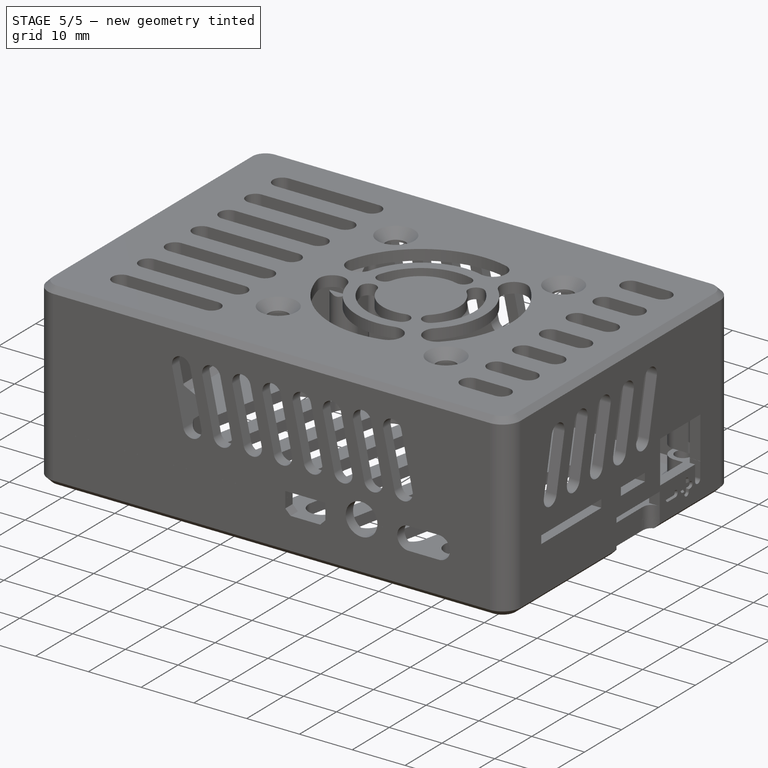
[diagram: stage 5 of 5 — iso view after this stage's code; geometry added in this stage tinted green]
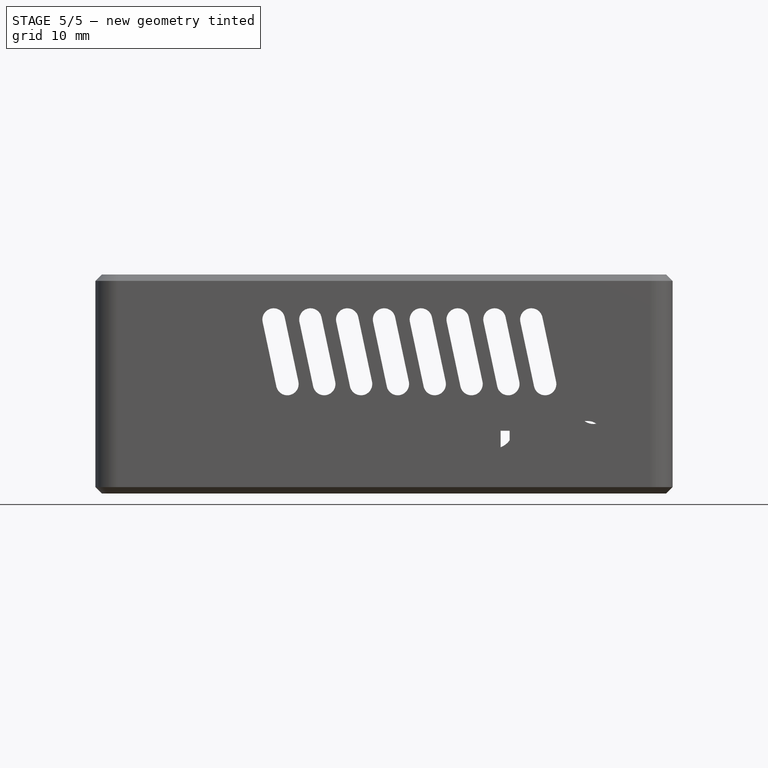
[diagram: stage 5 of 5 — front view after this stage's code; geometry added in this stage tinted green]
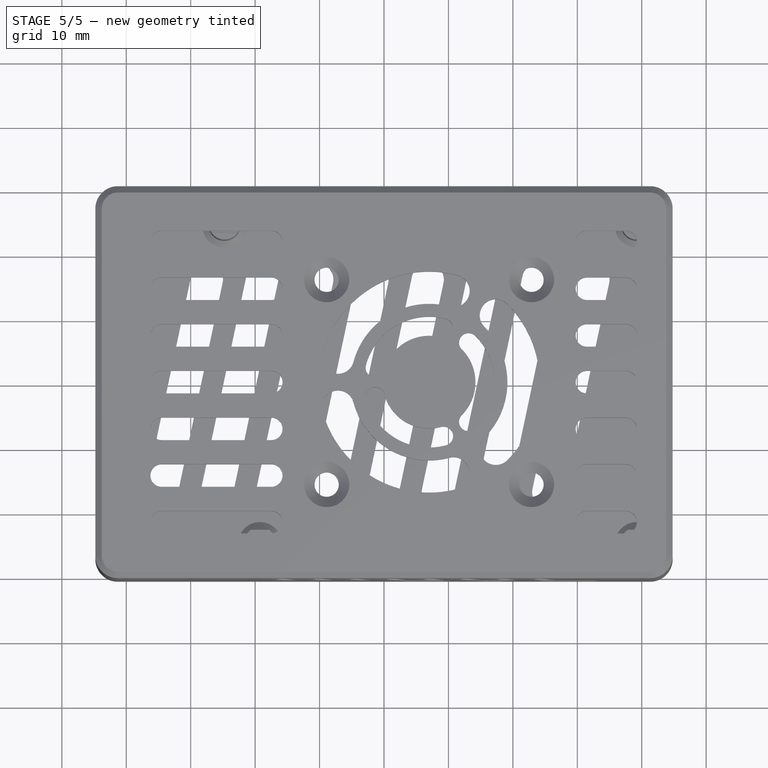
[diagram: stage 5 of 5 — top view after this stage's code; geometry added in this stage tinted green]
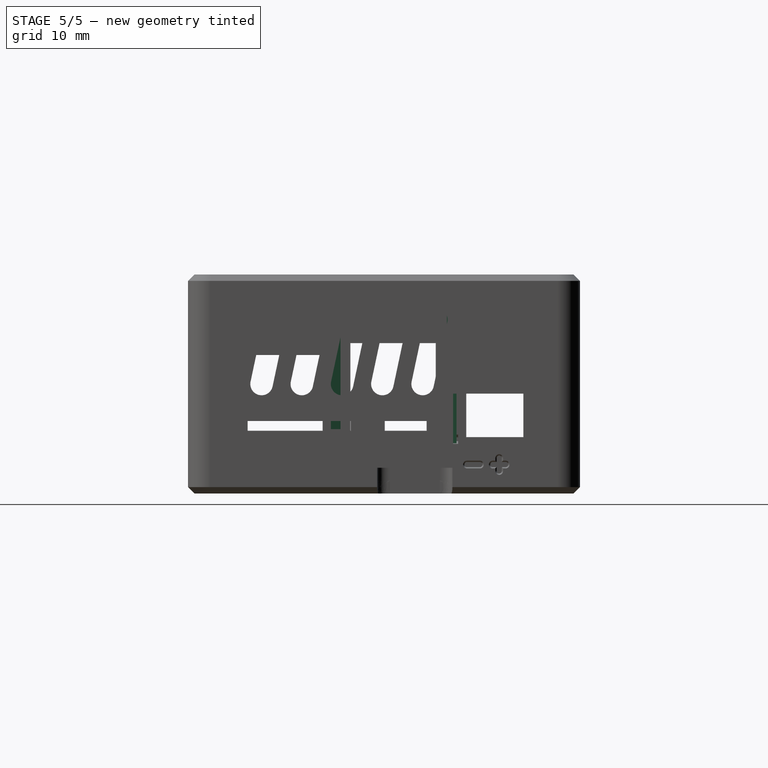
[diagram: stage 5 of 5 — right view after this stage's code; geometry added in this stage tinted green]
FEATURE [Sketcher::SketchObject] Sketch005
  AttachmentOffset = pos=(-24.88,0,0) rot=(0,1,0;1.5708rad)
  FullyConstrained = true
  MapMode = 5
  Placement = pos=(-24.88,0,0) rot=(0.57735,0.57735,0.57735;2.0944rad)
  Support = -> [XZ_Plane]
  sketch-geometry (4):
    g0: LineSegment StartX=28.425 StartY=-9.2 StartZ=0 EndX=28.925 EndY=-8.8499 EndZ=0
    g1: LineSegment StartX=28.925 StartY=-8.8499 StartZ=0 EndX=28.925 EndY=-8.2499 EndZ=0
    g2: LineSegment StartX=28.925 StartY=-8.2499 StartZ=0 EndX=28.425 EndY=-7.89979 EndZ=0
    g3: LineSegment StartX=28.425 StartY=-7.89979 StartZ=0 EndX=28.425 EndY=-9.2 EndZ=0
  constraints (12):
    c: Coincident(g0,g1)
    c: Vertical(g1)
    c: Coincident(g1,g2)
    c: Coincident(g2,g3)
    c: Coincident(g3,g0)
    c: Vertical(g3)
    c: Equal(g2,g0)
    c: Angle(g3,g2) = 0.959931
    c: DistanceY(g1,g1) = 0.6
    c: DistanceX(g0,g0) = 0.5
    c: DistanceX(g-1,g0) = 28.425
    c: DistanceY(g0,g-1) = 9.2
FEATURE [Sketcher::SketchObject] Sketch006
  AttachmentOffset = pos=(-19.25,0,0) rot=(0,1,0;-1.5708rad)
  FullyConstrained = true
  MapMode = 5
  Placement = pos=(-19.25,0,0) rot=(-0.57735,0.57735,0.57735;4.18879rad)
  Support = -> [XZ_Plane]
  sketch-geometry (4):
    g0: LineSegment StartX=28.425 StartY=-9.2 StartZ=0 EndX=28.925 EndY=-8.8499 EndZ=0
    g1: LineSegment StartX=28.925 StartY=-8.8499 StartZ=0 EndX=28.925 EndY=-8.2499 EndZ=0
    g2: LineSegment StartX=28.925 StartY=-8.2499 StartZ=0 EndX=28.425 EndY=-7.89979 EndZ=0
    g3: LineSegment StartX=28.425 StartY=-7.89979 StartZ=0 EndX=28.425 EndY=-9.2 EndZ=0
  constraints (12):
    c: Coincident(g0,g1)
    c: Vertical(g1)
    c: Coincident(g1,g2)
    c: Coincident(g2,g3)
    c: Coincident(g3,g0)
    c: Vertical(g3)
    c: Equal(g2,g0)
    c: Angle(g3,g2) = 0.959931
    c: DistanceY(g1,g1) = 0.6
    c: DistanceX(g0,g0) = 0.5
    c: DistanceX(g-1,g0) = 28.425
    c: DistanceY(g0,g-1) = 9.2
FEATURE [PartDesign::Pad] Pad002  label="Locator_sideL"
  BaseFeature = -> Pad001
  Direction = (1,-2e-16,0)
  Length = 2.5
  Length2 = 10
  Midplane = true
  Profile = -> Sketch005
  ReferenceAxis = -> Sketch005 [N_Axis]
  Type = 0
FEATURE [PartDesign::Pad] Pad003  label="Locator_sideR"
  BaseFeature = -> Pad002
  Direction = (-1,2e-16,0)
  Length = 2.5
  Length2 = 10
  Midplane = true
  Profile = -> Sketch006
  ReferenceAxis = -> Sketch006 [N_Axis]
  Type = 0
FEATURE [Sketcher::SketchObject] Sketch007  label="Vane_locator"
  AttachmentOffset = pos=(0,0,-10.5) rot=(0,0,1;0rad)
  FullyConstrained = true
  MapMode = 5
  Placement = pos=(0,10.5,2.3e-15) rot=(1,0,0;1.5708rad)
  Support = -> [XZ_Plane]
  sketch-geometry (7):
    g0: LineSegment StartX=-42.8 StartY=15 StartZ=0 EndX=-31.8 EndY=15 EndZ=0
    g1: LineSegment StartX=-31.8 StartY=15 StartZ=0 EndX=-35.8 EndY=-9.2 EndZ=0
    g2: LineSegment StartX=-35.8 StartY=-9.2 StartZ=0 EndX=-42.8 EndY=-9.2 EndZ=0
    g3: LineSegment StartX=-42.8 StartY=-9.2 StartZ=0 EndX=-43.3 EndY=-8.8499 EndZ=0
    g4: LineSegment StartX=-43.3 StartY=-8.8499 StartZ=0 EndX=-43.3 EndY=-8.2499 EndZ=0
    g5: LineSegment StartX=-43.3 StartY=-8.2499 StartZ=0 EndX=-42.8 EndY=-7.89979 EndZ=0
    g6: LineSegment StartX=-42.8 StartY=-7.89979 StartZ=0 EndX=-42.8 EndY=15 EndZ=0
  constraints (21):
    c: Horizontal(g0)
    c: Coincident(g0,g1)
    c: Coincident(g1,g2)
    c: Horizontal(g2)
    c: DistanceX(g0,g-1) = 42.8
    c: DistanceY(g-1,g0) = 15
    c: DistanceY(g2,g-1) = 9.2
    c: DistanceX(g2,g2) = 7
    c: DistanceX(g0,g0) = 11
    c: Vertical(g2,g0)
    c: Coincident(g2,g3)
    c: Coincident(g3,g4)
    c: Vertical(g4)
    c: Coincident(g4,g5)
    c: Coincident(g5,g6)
    c: Coincident(g6,g0)
    c: Vertical(g6)
    c: Equal(g5,g3)
    c: DistanceY(g4,g4) = 0.6
    c: DistanceX(g3,g2) = 0.5
    c: Angle(g2,g5) = 0.610865
FEATURE [Sketcher::SketchObject] Sketch008  label="Vane_notched"
  AttachmentOffset = pos=(0,0,7.5) rot=(0,0,1;0rad)
  FullyConstrained = true
  MapMode = 5
  Placement = pos=(0,-7.5,-1.7e-15) rot=(1,0,0;1.5708rad)
  Support = -> [XZ_Plane]
  sketch-geometry (3):
    g0: LineSegment StartX=-42.8 StartY=15 StartZ=0 EndX=-36.8 EndY=15 EndZ=0
    g1: LineSegment StartX=-36.8 StartY=15 StartZ=0 EndX=-42.8 EndY=-7 EndZ=0
    g2: LineSegment StartX=-42.8 StartY=-7 StartZ=0 EndX=-42.8 EndY=15 EndZ=0
  constraints (9):
    c: Horizontal(g0)
    c: Coincident(g0,g1)
    c: Coincident(g2,g0)
    c: Vertical(g2)
    c: DistanceX(g0,g-1) = 42.8
    c: DistanceY(g-1,g0) = 15
    c: DistanceX(g0,g0) = 6
    c: Coincident(g1,g2)
    c: DistanceY(g1,g0) = 22
FEATURE [PartDesign::Pad] Pad004  label="Vane_loc"
  BaseFeature = -> Pad003
  Direction = (0,-1,-2e-16)
  Length = 1.5
  Length2 = 10
  Midplane = true
  Profile = -> Sketch007
  ReferenceAxis = -> Sketch007 [N_Axis]
  Type = 0
FEATURE [PartDesign::Pad] Pad005  label="Vane_float"
  BaseFeature = -> Pad004
  Direction = (0,-1,-2e-16)
  Length = 1.5
  Length2 = 10
  Midplane = true
  Profile = -> Sketch008
  ReferenceAxis = -> Sketch008 [N_Axis]
  Type = 0
FEATURE [PartDesign::Pocket] Pocket003
  BaseFeature = -> Pad005
  Direction = (0,0,1)
  Length = 1.5
  Length2 = 5
  Profile = -> Pad005 [Face289]
  Type = 0
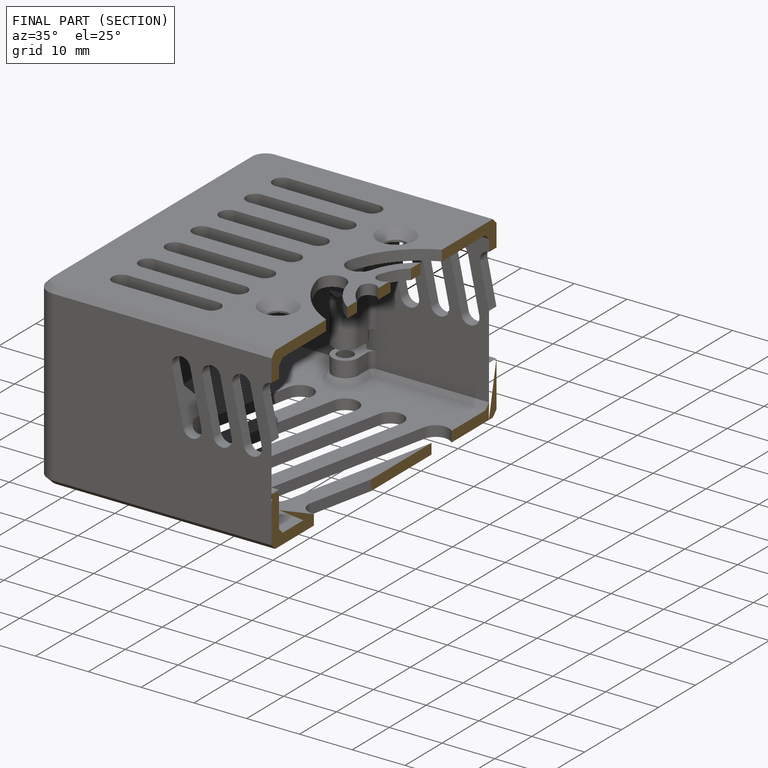
[diagram: finished part — half-section view (interior)]
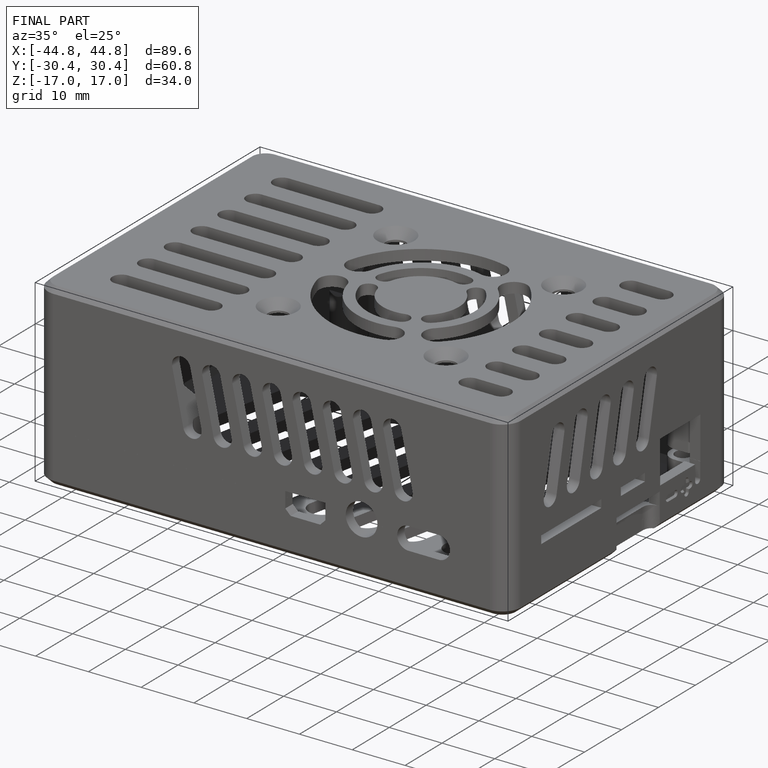
[diagram: finished part — iso view with bounding-box wireframe]
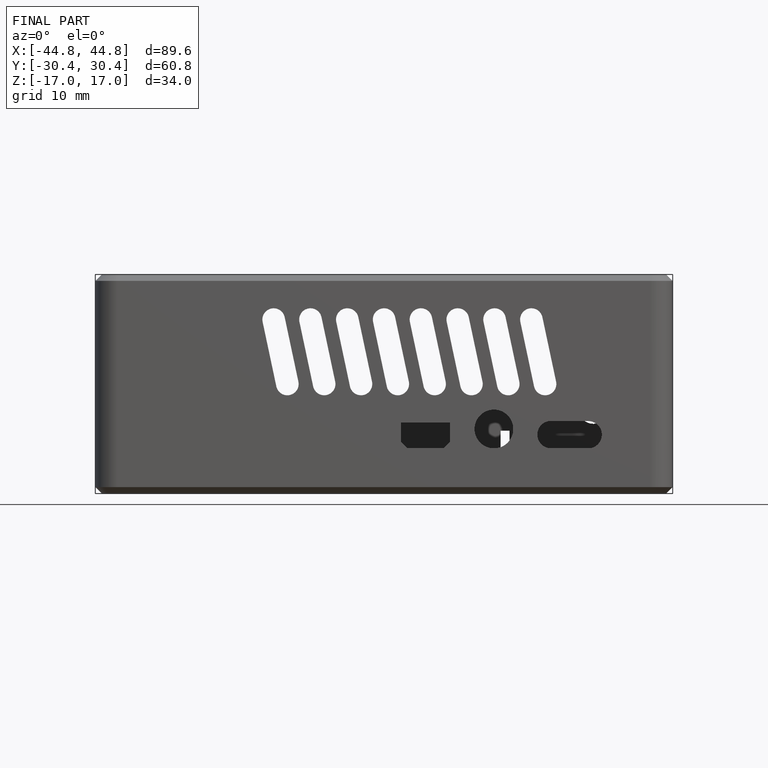
[diagram: finished part — front view with bounding-box wireframe]
